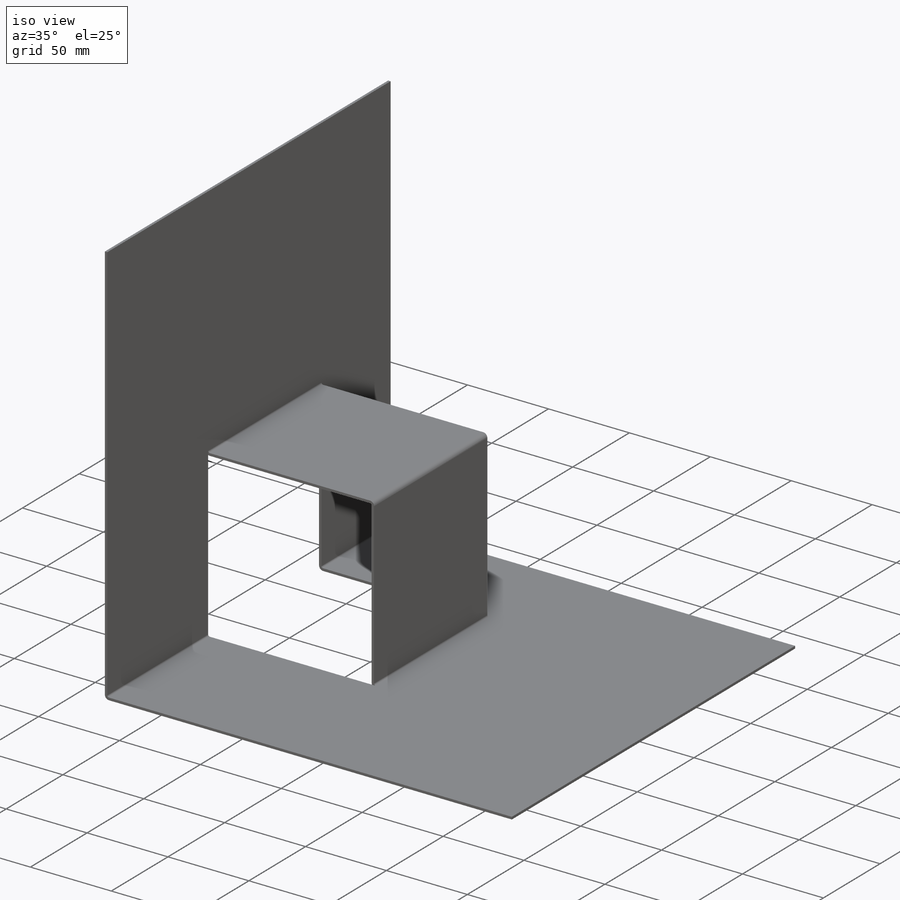
[diagram: iso view]
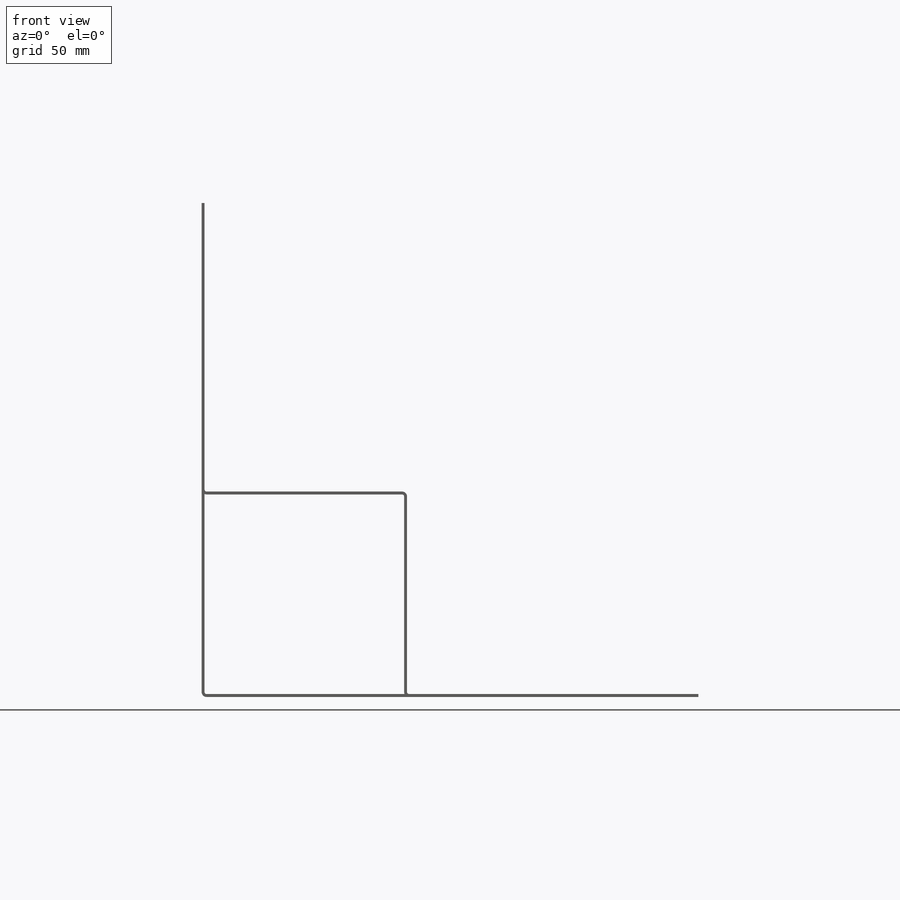
[diagram: front view]
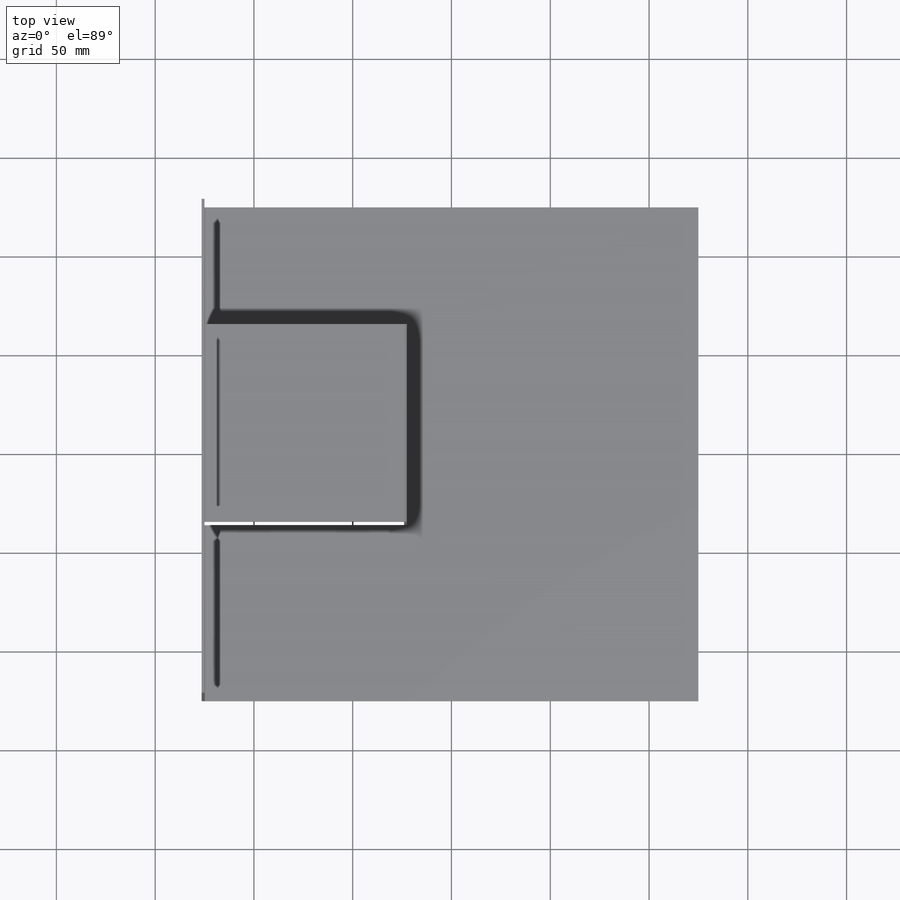
[diagram: top view]
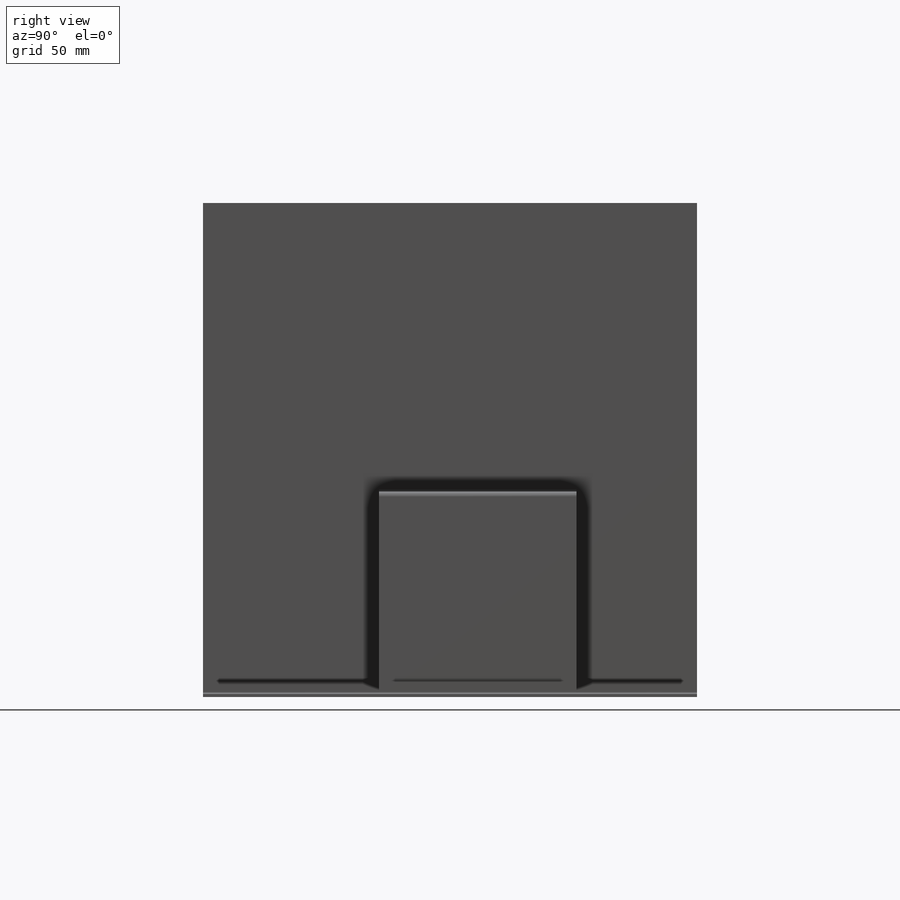
[diagram: right view]
SOLIDWORKS PART (.sldprt)
format: sldprt  version: not decoded by parser v0  size: 281,088 bytes
history: native  units: mm
features: sketch x10, material x2, sheet_metal_op x2, extrude x2, cut_extrude x1 + 1 further entry (+22 scaffold rows collapsed; 1 parser-record rows omitted)
feature tree (41):
  scaffold x22  (default folders/planes/origin — collapsed)
  material  "Material <not specified>"
  material  "Material <not specified>"
  sketch  "Sketch1"  dims[D1=250.0mm D2=250.0mm]
  sheet_metal_op  "Sheet-Metal1"
  sheet_metal_op  "Base-Flange1"
  sketch  "Sketch7"  dims[c1.D1=1.0mm c1.D4=90.0deg c1.D5=1.0 c1.D8=0.75mm c1.D9=0.75mm c2.D1=1.0mm c2.D2=500.0mm c2.D3=0.0mm c2.D6=10.0mm c2.D7=250.0mm]
  sketch  "Sketch19"
  sketch  "Sketch1"  dims[c1.D3=2.5mm c1.D1=250.0mm c1.D2=250.0mm c2.D1=250.0mm c2.D5=1.5mm c2.D6=10.0mm c2.D7=5.0mm]
  sketch  "Sketch3"  dims[D3=2.5mm D4=2.5mm D5=1.0mm D1=100.0mm D2=100.0mm]
  extrude  "Boss-Extrude1"  Depth=100mm D1_2=100mm
  cut_extrude  "Cut-Extrude1"  [1 undecoded]
  sketch  "Sketch3<2>"  dims[D1_1=400.0mm]
  sketch  "Sketch4"  dims[D1=10.0mm]
  extrude  "Boss-Extrude2"  Depth=10mm
  sketch  "Orientation Sketch"
  "Flat-Pattern1"
  sketch  "Bend-Lines1"
  sketch  "Bounding-Box1"
  parser-record x1  (decoder bookkeeping rows leaked as tree rows — omitted from the tree; the rows remain in map.json)
decode coverage: 8 of 15 modeling features carry decoded parameters; 1 rows unclassified (native names shown)
note: 1 parameter value undecoded
note: suppression state not decoded; provenance and decode notes live in map.json
